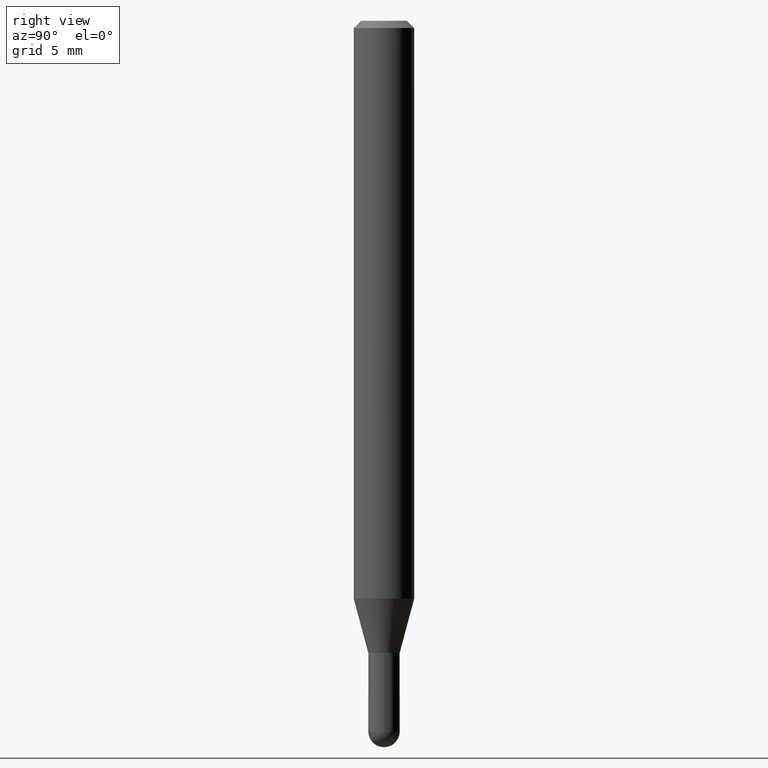
[diagram: clean part render]
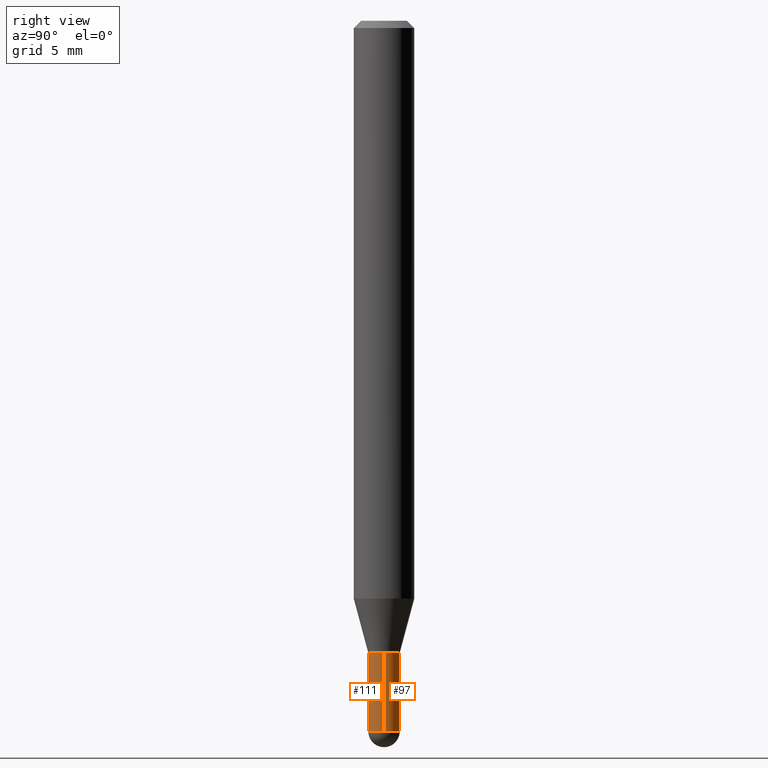
[diagram: same view with one multi-face feature highlighted, each face labeled with its STEP entity id]
A machine part, right view. The highlighted faces form ONE feature: a constant-radius fillet chain: 2 tangent blend faces with common blend radius 0.8255 mm. The faces share edges in the B-rep.
Their STEP definitions:
[1] entity #97 (Cylinder):
#9 = DIRECTION ( 'NONE',  ( -2.445468806185136597E-29, 3.491481338843145583E-15, 1.000000000000000000 ) ) ;
#27 = CIRCLE ( 'NONE', #59, 0.03250000000000000111 ) ;
#29 = DIRECTION ( 'NONE',  ( -2.445468806185136597E-29, 3.491481338843145583E-15, 1.000000000000000000 ) ) ;
#40 = EDGE_CURVE ( 'NONE', #488, #289, #79, .T. ) ;
#52 = ORIENTED_EDGE ( 'NONE', *, *, #228, .T. ) ;
#59 = AXIS2_PLACEMENT_3D ( 'NONE', #233, #29, #192 ) ;
#72 = CARTESIAN_POINT ( 'NONE',  ( 2.309263891220684122E-16, 0.03249999999999488021, -1.467500000000000027 ) ) ;
#74 = DIRECTION ( 'NONE',  ( 1.000000000000000000, -6.982962677686267499E-15, 4.876176775795936353E-29 ) ) ;
#79 = LINE ( 'NONE', #245, #199 ) ;
#86 = CARTESIAN_POINT ( 'NONE',  ( 0.03250000000000000111, -4.783329434215109105E-15, -1.305000000000000160 ) ) ;
#90 = AXIS2_PLACEMENT_3D ( 'NONE', #432, #9, #238 ) ;
#97 = ADVANCED_FACE ( 'NONE', ( #163 ), #249, .T. ) ;
#101 = CIRCLE ( 'NONE', #90, 0.03250000000000000111 ) ;
#123 = LINE ( 'NONE', #272, #360 ) ;
#124 = VERTEX_POINT ( 'NONE', #509 ) ;
#125 = AXIS2_PLACEMENT_3D ( 'NONE', #239, #206, #74 ) ;
#136 = EDGE_CURVE ( 'NONE', #219, #289, #27, .T. ) ;
#163 = FACE_OUTER_BOUND ( 'NONE', #455, .T. ) ;
#190 = DIRECTION ( 'NONE',  ( 1.000000000000000000, -6.982962677686258033E-15, 0.000000000000000000 ) ) ;
#192 = DIRECTION ( 'NONE',  ( 1.000000000000000000, -6.982962677686258033E-15, 0.000000000000000000 ) ) ;
#199 = VECTOR ( 'NONE', #447, 39.37007874015748143 ) ;
#201 = CARTESIAN_POINT ( 'NONE',  ( -0.03250000000000000111, -4.609139616849279150E-15, -1.467500000000000027 ) ) ;
#206 = DIRECTION ( 'NONE',  ( -2.445468806185136597E-29, 3.491481338843145583E-15, 1.000000000000000000 ) ) ;
#219 = VERTEX_POINT ( 'NONE', #86 ) ;
#228 = EDGE_CURVE ( 'NONE', #416, #488, #101, .T. ) ;
#233 = CARTESIAN_POINT ( 'NONE',  ( 3.191336792071603685E-29, -4.556383147190305752E-15, -1.305000000000000160 ) ) ;
#238 = DIRECTION ( 'NONE',  ( 1.000000000000000000, -6.982962677686258033E-15, 0.000000000000000000 ) ) ;
#239 = CARTESIAN_POINT ( 'NONE',  ( 0.000000000000000000, 0.000000000000000000, 0.000000000000000000 ) ) ;
#245 = CARTESIAN_POINT ( 'NONE',  ( -0.03250000000000000111, 2.309263891220325683E-16, -1.598653904332844407E-30 ) ) ;
#249 = CYLINDRICAL_SURFACE ( 'NONE', #125, 0.03250000000000000111 ) ;
#259 = CIRCLE ( 'NONE', #306, 0.03250000000000000111 ) ;
#261 = EDGE_CURVE ( 'NONE', #124, #416, #259, .T. ) ;
#264 = CARTESIAN_POINT ( 'NONE',  ( 3.588725473076687933E-29, -5.123748864752316500E-15, -1.467500000000000027 ) ) ;
#272 = CARTESIAN_POINT ( 'NONE',  ( 0.03250000000000000111, -2.269462870248036977E-16, 1.584757452133679343E-30 ) ) ;
#289 = VERTEX_POINT ( 'NONE', #302 ) ;
#294 = ORIENTED_EDGE ( 'NONE', *, *, #465, .F. ) ;
#302 = CARTESIAN_POINT ( 'NONE',  ( -0.03250000000000000111, -4.609139616849279150E-15, -1.305000000000000160 ) ) ;
#306 = AXIS2_PLACEMENT_3D ( 'NONE', #264, #501, #190 ) ;
#331 = ORIENTED_EDGE ( 'NONE', *, *, #261, .T. ) ;
#360 = VECTOR ( 'NONE', #434, 39.37007874015748143 ) ;
#363 = ORIENTED_EDGE ( 'NONE', *, *, #40, .T. ) ;
#416 = VERTEX_POINT ( 'NONE', #72 ) ;
#432 = CARTESIAN_POINT ( 'NONE',  ( 3.588725473076687933E-29, -5.123748864752316500E-15, -1.467500000000000027 ) ) ;
#434 = DIRECTION ( 'NONE',  ( -2.445468806185136877E-29, 3.491481338843145188E-15, 1.000000000000000000 ) ) ;
#435 = ORIENTED_EDGE ( 'NONE', *, *, #136, .F. ) ;
#447 = DIRECTION ( 'NONE',  ( -2.445468806185136877E-29, 3.491481338843145188E-15, 1.000000000000000000 ) ) ;
#455 = EDGE_LOOP ( 'NONE', ( #52, #363, #435, #294, #331 ) ) ;
#465 = EDGE_CURVE ( 'NONE', #124, #219, #123, .T. ) ;
#488 = VERTEX_POINT ( 'NONE', #201 ) ;
#501 = DIRECTION ( 'NONE',  ( -2.445468806185136597E-29, 3.491481338843145583E-15, 1.000000000000000000 ) ) ;
#509 = CARTESIAN_POINT ( 'NONE',  ( 0.03250000000000000111, -5.067012292996114873E-15, -1.467500000000000027 ) ) ;
[2] entity #111 (Cylinder):
#15 = AXIS2_PLACEMENT_3D ( 'NONE', #314, #81, #280 ) ;
#40 = EDGE_CURVE ( 'NONE', #488, #289, #79, .T. ) ;
#41 = CARTESIAN_POINT ( 'NONE',  ( 0.000000000000000000, 0.000000000000000000, 0.000000000000000000 ) ) ;
#43 = CARTESIAN_POINT ( 'NONE',  ( 3.191336792071603685E-29, -4.556383147190305752E-15, -1.305000000000000160 ) ) ;
#44 = ORIENTED_EDGE ( 'NONE', *, *, #296, .T. ) ;
#79 = LINE ( 'NONE', #245, #199 ) ;
#81 = DIRECTION ( 'NONE',  ( -2.445468806185136597E-29, 3.491481338843145583E-15, 1.000000000000000000 ) ) ;
#82 = EDGE_LOOP ( 'NONE', ( #209, #205, #44, #197, #138 ) ) ;
#86 = CARTESIAN_POINT ( 'NONE',  ( 0.03250000000000000111, -4.783329434215109105E-15, -1.305000000000000160 ) ) ;
#111 = ADVANCED_FACE ( 'NONE', ( #361 ), #321, .T. ) ;
#117 = CARTESIAN_POINT ( 'NONE',  ( -2.269462870247678045E-16, -0.03250000000000512895, -1.467500000000000027 ) ) ;
#123 = LINE ( 'NONE', #272, #360 ) ;
#124 = VERTEX_POINT ( 'NONE', #509 ) ;
#138 = ORIENTED_EDGE ( 'NONE', *, *, #445, .F. ) ;
#145 = CARTESIAN_POINT ( 'NONE',  ( 3.588725473076687933E-29, -5.123748864752316500E-15, -1.467500000000000027 ) ) ;
#197 = ORIENTED_EDGE ( 'NONE', *, *, #465, .T. ) ;
#199 = VECTOR ( 'NONE', #447, 39.37007874015748143 ) ;
#201 = CARTESIAN_POINT ( 'NONE',  ( -0.03250000000000000111, -4.609139616849279150E-15, -1.467500000000000027 ) ) ;
#205 = ORIENTED_EDGE ( 'NONE', *, *, #373, .T. ) ;
#209 = ORIENTED_EDGE ( 'NONE', *, *, #40, .F. ) ;
#219 = VERTEX_POINT ( 'NONE', #86 ) ;
#240 = DIRECTION ( 'NONE',  ( -2.445468806185136597E-29, 3.491481338843145583E-15, 1.000000000000000000 ) ) ;
#242 = CIRCLE ( 'NONE', #15, 0.03250000000000000111 ) ;
#245 = CARTESIAN_POINT ( 'NONE',  ( -0.03250000000000000111, 2.309263891220325683E-16, -1.598653904332844407E-30 ) ) ;
#272 = CARTESIAN_POINT ( 'NONE',  ( 0.03250000000000000111, -2.269462870248036977E-16, 1.584757452133679343E-30 ) ) ;
#280 = DIRECTION ( 'NONE',  ( 1.000000000000000000, -6.982962677686258033E-15, 0.000000000000000000 ) ) ;
#289 = VERTEX_POINT ( 'NONE', #302 ) ;
#296 = EDGE_CURVE ( 'NONE', #405, #124, #421, .T. ) ;
#302 = CARTESIAN_POINT ( 'NONE',  ( -0.03250000000000000111, -4.609139616849279150E-15, -1.305000000000000160 ) ) ;
#311 = DIRECTION ( 'NONE',  ( 1.000000000000000000, -6.982962677686258033E-15, 0.000000000000000000 ) ) ;
#314 = CARTESIAN_POINT ( 'NONE',  ( 3.588725473076687933E-29, -5.123748864752316500E-15, -1.467500000000000027 ) ) ;
#321 = CYLINDRICAL_SURFACE ( 'NONE', #329, 0.03250000000000000111 ) ;
#329 = AXIS2_PLACEMENT_3D ( 'NONE', #41, #391, #398 ) ;
#334 = CIRCLE ( 'NONE', #470, 0.03250000000000000111 ) ;
#358 = AXIS2_PLACEMENT_3D ( 'NONE', #145, #507, #459 ) ;
#360 = VECTOR ( 'NONE', #434, 39.37007874015748143 ) ;
#361 = FACE_OUTER_BOUND ( 'NONE', #82, .T. ) ;
#373 = EDGE_CURVE ( 'NONE', #488, #405, #242, .T. ) ;
#391 = DIRECTION ( 'NONE',  ( -2.445468806185136597E-29, 3.491481338843145583E-15, 1.000000000000000000 ) ) ;
#398 = DIRECTION ( 'NONE',  ( 1.000000000000000000, -6.982962677686267499E-15, 4.876176775795936353E-29 ) ) ;
#405 = VERTEX_POINT ( 'NONE', #117 ) ;
#421 = CIRCLE ( 'NONE', #358, 0.03250000000000000111 ) ;
#434 = DIRECTION ( 'NONE',  ( -2.445468806185136877E-29, 3.491481338843145188E-15, 1.000000000000000000 ) ) ;
#445 = EDGE_CURVE ( 'NONE', #289, #219, #334, .T. ) ;
#447 = DIRECTION ( 'NONE',  ( -2.445468806185136877E-29, 3.491481338843145188E-15, 1.000000000000000000 ) ) ;
#459 = DIRECTION ( 'NONE',  ( 1.000000000000000000, -6.982962677686258033E-15, 0.000000000000000000 ) ) ;
#465 = EDGE_CURVE ( 'NONE', #124, #219, #123, .T. ) ;
#470 = AXIS2_PLACEMENT_3D ( 'NONE', #43, #240, #311 ) ;
#488 = VERTEX_POINT ( 'NONE', #201 ) ;
#507 = DIRECTION ( 'NONE',  ( -2.445468806185136597E-29, 3.491481338843145583E-15, 1.000000000000000000 ) ) ;
#509 = CARTESIAN_POINT ( 'NONE',  ( 0.03250000000000000111, -5.067012292996114873E-15, -1.467500000000000027 ) ) ;